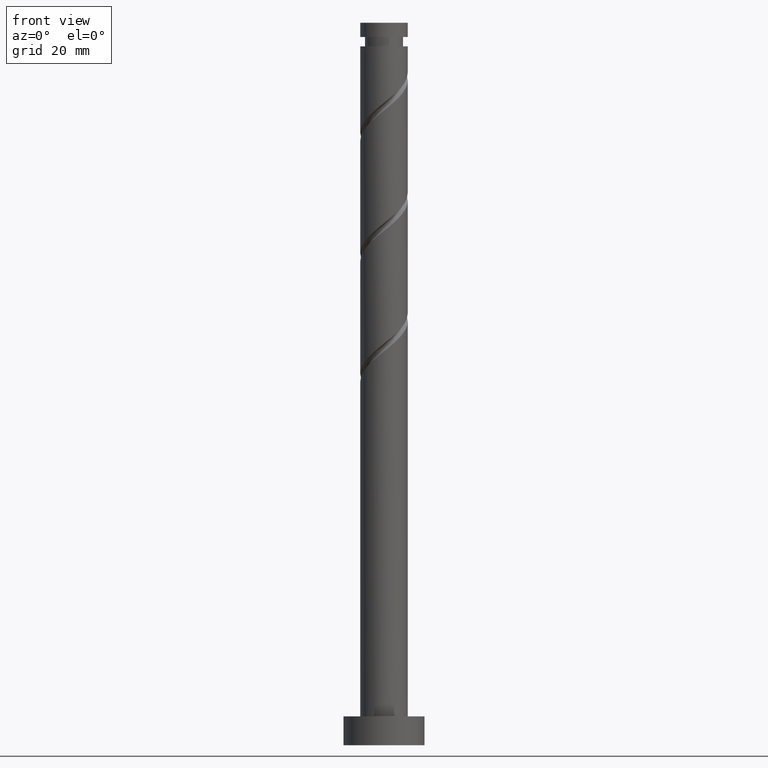
[diagram: clean part render]
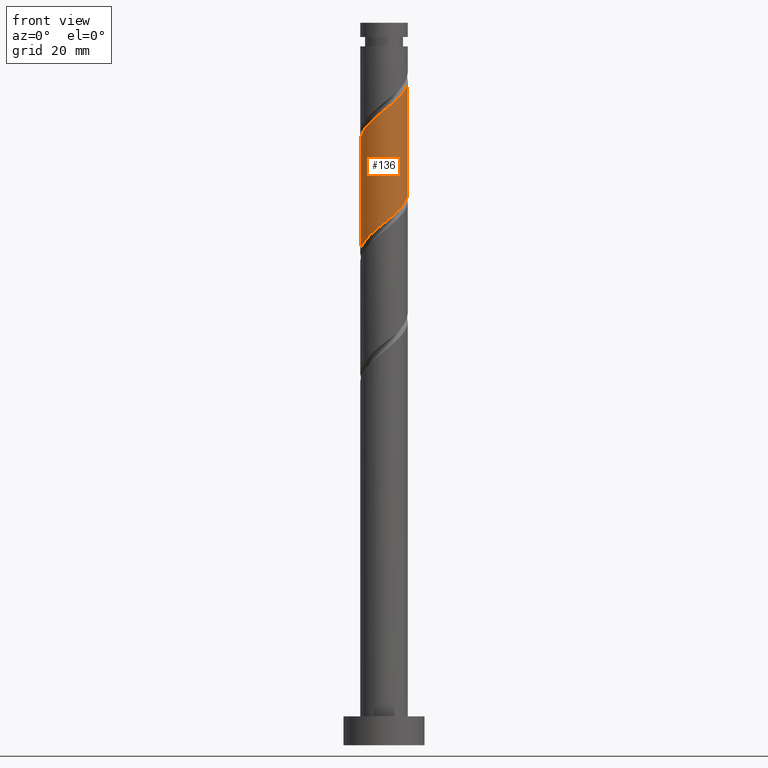
[diagram: same view with one face highlighted and labeled with its STEP entity id]
A machine part, front view. The second image highlights one B-rep face of the part: STEP entity #136.
In plain terms, the highlighted cylindrical surface (edge-blend (fillet) strip) has radius 4.1 mm, axis along (-0, -0, -1).
Its self-contained STEP definition (entity closure, byte-faithful):
#32 = CARTESIAN_POINT ( 'NONE',  ( 4.099999999999999645, 5.021051876504147385E-16, 125.0000000000000000 ) ) ;
#57 = CARTESIAN_POINT ( 'NONE',  ( -0.4656730691310464465, -4.073468864823459157, 109.4467519066102739 ) ) ;
#67 = CARTESIAN_POINT ( 'NONE',  ( 4.099999999999998757, 5.757351468751028178E-15, 95.52822101474720284 ) ) ;
#122 = AXIS2_PLACEMENT_3D ( 'NONE', #255, #841, #615 ) ;
#136 = ADVANCED_FACE ( 'NONE', ( #1575 ), #1461, .T. ) ;
#159 = CARTESIAN_POINT ( 'NONE',  ( -4.073468864823453828, -0.4656730691310444481, 85.48841857327695948 ) ) ;
#160 = CARTESIAN_POINT ( 'NONE',  ( 3.730198215631539860, -1.701652512147919794, 113.6134185732769453 ) ) ;
#161 = EDGE_LOOP ( 'NONE', ( #789, #1367, #821, #1262 ) ) ;
#168 = CARTESIAN_POINT ( 'NONE',  ( -3.021789775274398071, -2.771062351165541671, 87.57175190661028807 ) ) ;
#188 = CARTESIAN_POINT ( 'NONE',  ( 3.021789775274400291, -2.771062351165546556, 112.5717519066102739 ) ) ;
#196 = CARTESIAN_POINT ( 'NONE',  ( -2.017587497666033070, -3.569221300124400642, 88.61341857327694527 ) ) ;
#223 = EDGE_CURVE ( 'NONE', #1090, #269, #498, .T. ) ;
#241 = VERTEX_POINT ( 'NONE', #1258 ) ;
#255 = CARTESIAN_POINT ( 'NONE',  ( 0.000000000000000000, 0.000000000000000000, 125.0000000000000000 ) ) ;
#269 = VERTEX_POINT ( 'NONE', #1147 ) ;
#293 = CARTESIAN_POINT ( 'NONE',  ( -4.099999999999999645, -0.2335923235303833390, 85.30106543728783208 ) ) ;
#295 = VECTOR ( 'NONE', #1250, 1000.000000000000000 ) ;
#303 = DIRECTION ( 'NONE',  ( -0.000000000000000000, -0.000000000000000000, -1.000000000000000000 ) ) ;
#310 = CARTESIAN_POINT ( 'NONE',  ( 0.4656730691310442816, -4.073468864823453828, 90.69675190661028807 ) ) ;
#403 = CARTESIAN_POINT ( 'NONE',  ( -0.8158896984274294217, -4.017999999999999794, 89.65508523994360246 ) ) ;
#411 = CARTESIAN_POINT ( 'NONE',  ( 3.249666833500783447, -2.582896615680648988, 93.30091857327691685 ) ) ;
#412 = CARTESIAN_POINT ( 'NONE',  ( 4.100000000000004974, -0.2335923235303737633, 114.8424383759327583 ) ) ;
#428 = CARTESIAN_POINT ( 'NONE',  ( 4.099999999999999645, -0.4120655042562746950, 95.19391643933937530 ) ) ;
#437 = CARTESIAN_POINT ( 'NONE',  ( 3.888775766748015172, -1.452278379651415818, 94.34258523994357404 ) ) ;
#450 =( BOUNDED_CURVE ( )  B_SPLINE_CURVE ( 2, ( #472, #1430, #697, #1054, #1299, #689, #703, #951, #1378, #1501, #57, #761, #753, #726, #544, #1485, #188, #1269, #160, #660, #875, #412, #1148 ),
 .UNSPECIFIED., .F., .T. ) 
 B_SPLINE_CURVE_WITH_KNOTS ( ( 3, 2, 2, 2, 2, 2, 2, 2, 2, 2, 2, 3 ),
 ( 0.5545322023138553602, 0.5625000000000000000, 0.5749999999999999556, 0.5875000000000000222, 0.5999999999999999778, 0.6125000000000000444, 0.6250000000000000000, 0.6374999999999999556, 0.6500000000000000222, 0.6624999999999999778, 0.6750000000000000444, 0.6795322023138552492 ),
 .UNSPECIFIED. ) 
 CURVE ( )  GEOMETRIC_REPRESENTATION_ITEM ( )  RATIONAL_B_SPLINE_CURVE ( ( 0.9039174447099410648, 0.9019565955404706958, 0.9090909090909189416, 0.8978984914501350056, 0.9090909090909189416, 0.8978984914501350056, 0.9090909090909189416, 0.8978984914501350056, 0.9090909090909189416, 0.8978984914501350056, 0.9090909090909189416, 0.8978984914501350056, 0.9090909090909189416, 0.8978984914501350056, 0.9090909090909189416, 0.8978984914501350056, 0.9090909090909189416, 0.8978984914501350056, 0.9090909090909189416, 0.8978984914501350056, 0.9090909090909189416, 0.9050328050005832514, 0.9039174447099410648 ) ) 
 REPRESENTATION_ITEM ( '' )  );
#472 = CARTESIAN_POINT ( 'NONE',  ( -4.100000000000005862, -1.979089567383152402E-15, 104.6152827984734017 ) ) ;
#498 =( BOUNDED_CURVE ( )  B_SPLINE_CURVE ( 2, ( #67, #428, #899, #437, #907, #411, #1004, #914, #1400, #793, #310, #1492, #403, #890, #196, #883, #168, #1384, #1517, #785, #159, #293, #1019 ),
 .UNSPECIFIED., .F., .T. ) 
 B_SPLINE_CURVE_WITH_KNOTS ( ( 3, 2, 2, 2, 2, 2, 2, 2, 2, 2, 2, 3 ),
 ( 0.5545322023138551382, 0.5625000000000000000, 0.5749999999999999556, 0.5875000000000000222, 0.5999999999999999778, 0.6125000000000000444, 0.6250000000000000000, 0.6374999999999999556, 0.6500000000000000222, 0.6624999999999999778, 0.6750000000000000444, 0.6795322023138550271 ),
 .UNSPECIFIED. ) 
 CURVE ( )  GEOMETRIC_REPRESENTATION_ITEM ( )  RATIONAL_B_SPLINE_CURVE ( ( 0.9039174447099351806, 0.9019565955404644786, 0.9090909090909128354, 0.8978984914501290104, 0.9090909090909128354, 0.8978984914501290104, 0.9090909090909128354, 0.8978984914501290104, 0.9090909090909128354, 0.8978984914501290104, 0.9090909090909128354, 0.8978984914501290104, 0.9090909090909128354, 0.8978984914501290104, 0.9090909090909128354, 0.8978984914501290104, 0.9090909090909128354, 0.8978984914501290104, 0.9090909090909128354, 0.8978984914501290104, 0.9090909090909128354, 0.9050328050005774783, 0.9039174447099352916 ) ) 
 REPRESENTATION_ITEM ( '' )  );
#544 = CARTESIAN_POINT ( 'NONE',  ( 2.017587497666033958, -3.569221300124405971, 111.5300852399436167 ) ) ;
#615 = DIRECTION ( 'NONE',  ( -1.000000000000000000, 0.000000000000000000, 0.000000000000000000 ) ) ;
#660 = CARTESIAN_POINT ( 'NONE',  ( 3.999713496394928569, -1.110847155465533920, 114.1342519066102597 ) ) ;
#675 = CARTESIAN_POINT ( 'NONE',  ( 4.100000000000004974, 1.439337867187747381E-15, 115.0319494651400163 ) ) ;
#689 = CARTESIAN_POINT ( 'NONE',  ( -3.249666833500789220, -2.582896615680652541, 106.8425852399435882 ) ) ;
#697 = CARTESIAN_POINT ( 'NONE',  ( -4.018000000000006011, -0.8158896984274291997, 105.2800852399436167 ) ) ;
#703 = CARTESIAN_POINT ( 'NONE',  ( -2.771062351165546556, -3.021789775274400291, 107.3634185732769453 ) ) ;
#726 = CARTESIAN_POINT ( 'NONE',  ( 1.452278379651416484, -3.888775766748021834, 111.0092519066102881 ) ) ;
#753 = CARTESIAN_POINT ( 'NONE',  ( 0.8158896984274288666, -4.018000000000006011, 110.4884185732769168 ) ) ;
#761 = CARTESIAN_POINT ( 'NONE',  ( 0.1795010172034409990, -4.147224233251987080, 109.9675852399435740 ) ) ;
#785 = CARTESIAN_POINT ( 'NONE',  ( -3.999713496394922796, -1.110847155465531699, 86.00925190661030229 ) ) ;
#789 = ORIENTED_EDGE ( 'NONE', *, *, #1233, .F. ) ;
#793 = CARTESIAN_POINT ( 'NONE',  ( 1.110847155465531033, -3.999713496394922796, 91.21758523994360246 ) ) ;
#821 = ORIENTED_EDGE ( 'NONE', *, *, #1157, .T. ) ;
#822 = CARTESIAN_POINT ( 'NONE',  ( 4.099999999999998757, 5.757351468751027389E-15, 95.52822101474721705 ) ) ;
#841 = DIRECTION ( 'NONE',  ( -0.000000000000000000, -0.000000000000000000, -1.000000000000000000 ) ) ;
#875 = CARTESIAN_POINT ( 'NONE',  ( 4.073468864823459157, -0.4656730691310465575, 114.6550852399436309 ) ) ;
#883 = CARTESIAN_POINT ( 'NONE',  ( -2.582896615680648988, -3.249666833500783447, 88.09258523994361667 ) ) ;
#890 = CARTESIAN_POINT ( 'NONE',  ( -1.452278379651415596, -3.888775766748015172, 89.13425190661025965 ) ) ;
#891 = LINE ( 'NONE', #1518, #295 ) ;
#899 = CARTESIAN_POINT ( 'NONE',  ( 4.017999999999999794, -0.8158896984274295328, 94.86341857327693106 ) ) ;
#907 = CARTESIAN_POINT ( 'NONE',  ( 3.569221300124400642, -2.017587497666033514, 93.82175190661028807 ) ) ;
#914 = CARTESIAN_POINT ( 'NONE',  ( 2.292457868830300338, -3.460682934868145821, 92.25925190661028807 ) ) ;
#951 = CARTESIAN_POINT ( 'NONE',  ( -2.292457868830304779, -3.460682934868151150, 107.8842519066102881 ) ) ;
#965 = VERTEX_POINT ( 'NONE', #675 ) ;
#1004 = CARTESIAN_POINT ( 'NONE',  ( 2.771062351165541671, -3.021789775274398071, 92.78008523994363088 ) ) ;
#1019 = CARTESIAN_POINT ( 'NONE',  ( -4.100000000000000533, 5.097654946289973959E-15, 85.11155434808055986 ) ) ;
#1054 = CARTESIAN_POINT ( 'NONE',  ( -3.888775766748021834, -1.452278379651416707, 105.8009185732769168 ) ) ;
#1090 = VERTEX_POINT ( 'NONE', #822 ) ;
#1115 = EDGE_CURVE ( 'NONE', #241, #965, #450, .T. ) ;
#1147 = CARTESIAN_POINT ( 'NONE',  ( -4.100000000000000533, 5.097654946289973959E-15, 85.11155434808055986 ) ) ;
#1148 = CARTESIAN_POINT ( 'NONE',  ( 4.100000000000004974, 1.439337867187747381E-15, 115.0319494651400021 ) ) ;
#1157 = EDGE_CURVE ( 'NONE', #241, #269, #891, .T. ) ;
#1233 = EDGE_CURVE ( 'NONE', #965, #1090, #1385, .T. ) ;
#1250 = DIRECTION ( 'NONE',  ( -0.000000000000000000, -0.000000000000000000, -1.000000000000000000 ) ) ;
#1258 = CARTESIAN_POINT ( 'NONE',  ( -4.100000000000005862, -1.979089567383152402E-15, 104.6152827984733875 ) ) ;
#1262 = ORIENTED_EDGE ( 'NONE', *, *, #223, .F. ) ;
#1269 = CARTESIAN_POINT ( 'NONE',  ( 3.460682934868151150, -2.292457868830305223, 113.0925852399436451 ) ) ;
#1299 = CARTESIAN_POINT ( 'NONE',  ( -3.569221300124405971, -2.017587497666034402, 106.3217519066102739 ) ) ;
#1307 = VECTOR ( 'NONE', #303, 1000.000000000000000 ) ;
#1367 = ORIENTED_EDGE ( 'NONE', *, *, #1115, .F. ) ;
#1378 = CARTESIAN_POINT ( 'NONE',  ( -1.701652512147919794, -3.730198215631539860, 108.4050852399436025 ) ) ;
#1384 = CARTESIAN_POINT ( 'NONE',  ( -3.460682934868144933, -2.292457868830300338, 87.05091857327693106 ) ) ;
#1385 = LINE ( 'NONE', #32, #1307 ) ;
#1400 = CARTESIAN_POINT ( 'NONE',  ( 1.701652512147915131, -3.730198215631534531, 91.73841857327693106 ) ) ;
#1430 = CARTESIAN_POINT ( 'NONE',  ( -4.100000000000004086, -0.4120655042562850756, 104.9495873738812008 ) ) ;
#1461 = CYLINDRICAL_SURFACE ( 'NONE', #122, 4.099999999999999645 ) ;
#1485 = CARTESIAN_POINT ( 'NONE',  ( 2.582896615680652097, -3.249666833500789220, 112.0509185732769311 ) ) ;
#1492 = CARTESIAN_POINT ( 'NONE',  ( -0.1795010172034425810, -4.147224233251981751, 90.17591857327693106 ) ) ;
#1501 = CARTESIAN_POINT ( 'NONE',  ( -1.110847155465533920, -3.999713496394928569, 108.9259185732769311 ) ) ;
#1517 = CARTESIAN_POINT ( 'NONE',  ( -3.730198215631534531, -1.701652512147915131, 86.53008523994360246 ) ) ;
#1518 = CARTESIAN_POINT ( 'NONE',  ( -4.099999999999999645, 0.000000000000000000, 125.0000000000000000 ) ) ;
#1575 = FACE_OUTER_BOUND ( 'NONE', #161, .T. ) ;